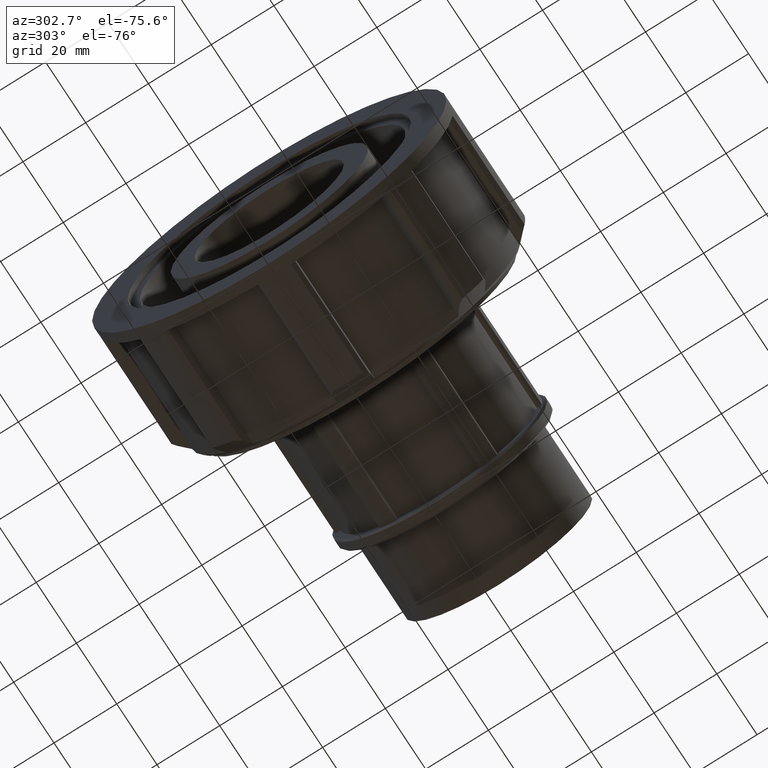
[diagram: clean part render]
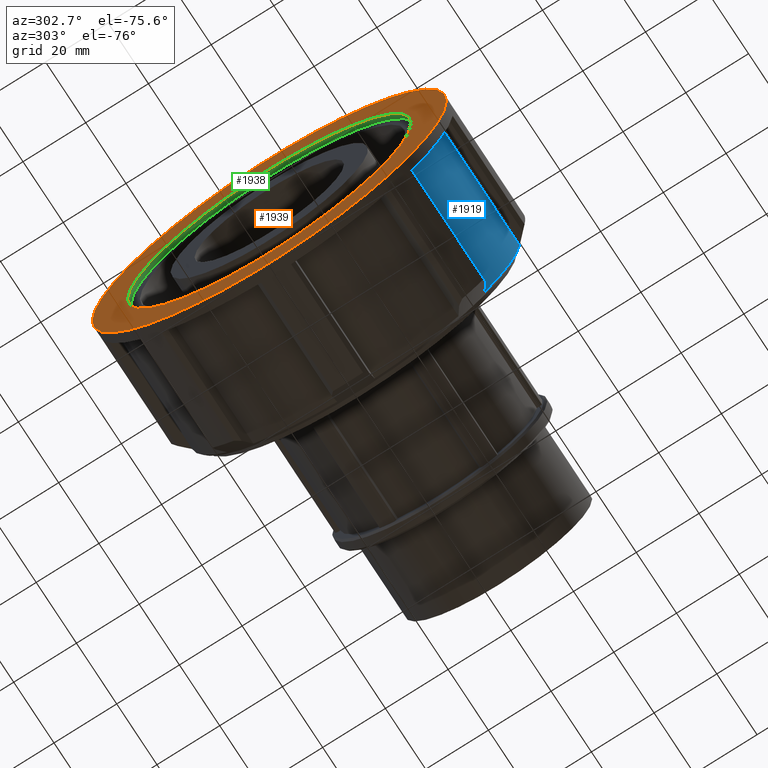
[diagram: same view with three faces highlighted in distinct colors, each labeled with its STEP entity id]
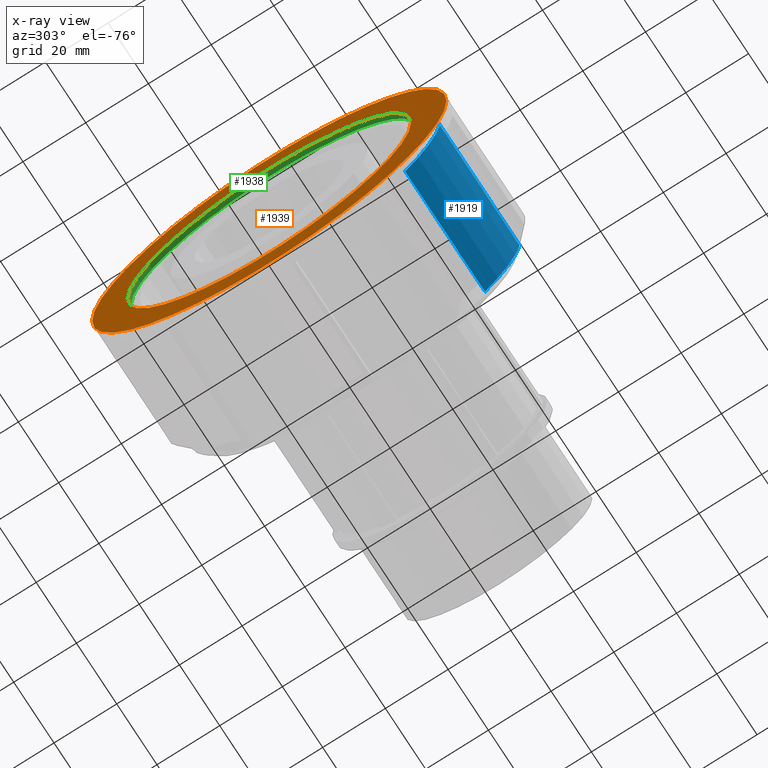
[diagram: x-ray of the same camera — body ghosted, the three highlighted faces saturated]
A machine part, auxiliary view with three faces highlighted in distinct colors.
The next image is the same camera in x-ray (body ghosted, the three faces saturated) — at least one of them is partly hidden behind the body in this view.
Their STEP definitions:

[orange] entity #1939 — the highlighted planar face has unit normal (-1, 0, 0).
#69=FACE_BOUND('',#412,.T.);
#122=CIRCLE('',#2039,56.5);
#149=CIRCLE('',#2123,45.2);
#285=FACE_OUTER_BOUND('',#411,.T.);
#411=EDGE_LOOP('',(#1751));
#412=EDGE_LOOP('',(#1752));
#880=VERTEX_POINT('',#3076);
#937=VERTEX_POINT('',#3294);
#1107=EDGE_CURVE('',#880,#880,#122,.T.);
#1211=EDGE_CURVE('',#937,#937,#149,.T.);
#1751=ORIENTED_EDGE('',*,*,#1107,.F.);
#1752=ORIENTED_EDGE('',*,*,#1211,.T.);
#1834=PLANE('',#2124);
#1939=ADVANCED_FACE('',(#285,#69),#1834,.T.);
#2039=AXIS2_PLACEMENT_3D('',#3077,#2406,#2407);
#2123=AXIS2_PLACEMENT_3D('',#3295,#2651,#2652);
#2124=AXIS2_PLACEMENT_3D('',#3296,#2653,#2654);
#2406=DIRECTION('center_axis',(1.,0.,0.));
#2407=DIRECTION('ref_axis',(0.,0.,-1.));
#2651=DIRECTION('center_axis',(1.,0.,0.));
#2652=DIRECTION('ref_axis',(0.,0.,-1.));
#2653=DIRECTION('center_axis',(-1.,0.,0.));
#2654=DIRECTION('ref_axis',(0.,0.,1.));
#3076=CARTESIAN_POINT('',(0.,56.5,0.));
#3077=CARTESIAN_POINT('Origin',(0.,0.,0.));
#3294=CARTESIAN_POINT('',(0.,45.2,0.));
#3295=CARTESIAN_POINT('Origin',(0.,0.,0.));
#3296=CARTESIAN_POINT('Origin',(0.,56.5,0.));

[blue] entity #1919 — the highlighted cylindrical surface (partial cylindrical patch) has radius 52.545 mm, axis along (1, 0, 0).
#113=CIRCLE('',#2029,52.545);
#133=CIRCLE('',#2080,52.545);
#169=CYLINDRICAL_SURFACE('',#2093,52.545);
#265=FACE_OUTER_BOUND('',#381,.T.);
#381=EDGE_LOOP('',(#1691,#1692,#1693,#1694));
#571=LINE('',#3210,#735);
#574=LINE('',#3215,#738);
#735=VECTOR('',#2533,39.65588);
#738=VECTOR('',#2538,39.65588);
#854=VERTEX_POINT('',#2986);
#855=VERTEX_POINT('',#2990);
#919=VERTEX_POINT('',#3209);
#920=VERTEX_POINT('',#3213);
#1081=EDGE_CURVE('',#854,#855,#113,.T.);
#1177=EDGE_CURVE('',#919,#855,#571,.T.);
#1180=EDGE_CURVE('',#854,#920,#574,.T.);
#1189=EDGE_CURVE('',#920,#919,#133,.T.);
#1691=ORIENTED_EDGE('',*,*,#1177,.T.);
#1692=ORIENTED_EDGE('',*,*,#1081,.F.);
#1693=ORIENTED_EDGE('',*,*,#1180,.T.);
#1694=ORIENTED_EDGE('',*,*,#1189,.T.);
#1919=ADVANCED_FACE('',(#265),#169,.T.);
#2029=AXIS2_PLACEMENT_3D('',#2991,#2386,#2387);
#2080=AXIS2_PLACEMENT_3D('',#3233,#2559,#2560);
#2093=AXIS2_PLACEMENT_3D('',#3251,#2588,#2589);
#2386=DIRECTION('center_axis',(1.,0.,0.));
#2387=DIRECTION('ref_axis',(0.,1.,0.));
#2533=DIRECTION('',(1.,0.,0.));
#2538=DIRECTION('',(-1.,0.,0.));
#2559=DIRECTION('center_axis',(1.,0.,0.));
#2560=DIRECTION('ref_axis',(0.,0.,-1.));
#2588=DIRECTION('center_axis',(1.,0.,0.));
#2589=DIRECTION('ref_axis',(0.,1.,0.));
#2986=CARTESIAN_POINT('',(43.07588,-52.2057346949547,-5.96140000000001));
#2990=CARTESIAN_POINT('',(43.07588,-41.1303753849938,-32.6996826542628));
#2991=CARTESIAN_POINT('Origin',(43.07588,0.,0.));
#3209=CARTESIAN_POINT('',(3.42,-41.1303753849938,-32.6996826542628));
#3210=CARTESIAN_POINT('',(23.655,-41.1303753849938,-32.6996826542628));
#3213=CARTESIAN_POINT('',(3.42,-52.2057346949547,-5.96140000000001));
#3215=CARTESIAN_POINT('',(23.655,-52.2057346949547,-5.96140000000001));
#3233=CARTESIAN_POINT('Origin',(3.42000000000001,0.,0.));
#3251=CARTESIAN_POINT('Origin',(23.655,0.,0.));

[green] entity #1938 — the highlighted cylindrical surface (bore or boss wall) has radius 45.2 mm, axis along (1, 0, 0).
#68=FACE_BOUND('',#410,.T.);
#148=CIRCLE('',#2121,45.2);
#149=CIRCLE('',#2123,45.2);
#179=CYLINDRICAL_SURFACE('',#2122,45.2);
#284=FACE_OUTER_BOUND('',#409,.T.);
#409=EDGE_LOOP('',(#1749));
#410=EDGE_LOOP('',(#1750));
#936=VERTEX_POINT('',#3291);
#937=VERTEX_POINT('',#3294);
#1210=EDGE_CURVE('',#936,#936,#148,.T.);
#1211=EDGE_CURVE('',#937,#937,#149,.T.);
#1749=ORIENTED_EDGE('',*,*,#1211,.F.);
#1750=ORIENTED_EDGE('',*,*,#1210,.T.);
#1938=ADVANCED_FACE('',(#284,#68),#179,.F.);
#2121=AXIS2_PLACEMENT_3D('',#3292,#2647,#2648);
#2122=AXIS2_PLACEMENT_3D('',#3293,#2649,#2650);
#2123=AXIS2_PLACEMENT_3D('',#3295,#2651,#2652);
#2647=DIRECTION('center_axis',(1.,0.,0.));
#2648=DIRECTION('ref_axis',(0.,0.,-1.));
#2649=DIRECTION('center_axis',(1.,0.,0.));
#2650=DIRECTION('ref_axis',(0.,1.,0.));
#2651=DIRECTION('center_axis',(1.,0.,0.));
#2652=DIRECTION('ref_axis',(0.,0.,-1.));
#3291=CARTESIAN_POINT('',(1.71,45.2,0.));
#3292=CARTESIAN_POINT('Origin',(1.70999999999999,0.,0.));
#3293=CARTESIAN_POINT('Origin',(0.854999999999997,0.,0.));
#3294=CARTESIAN_POINT('',(0.,45.2,0.));
#3295=CARTESIAN_POINT('Origin',(0.,0.,0.));